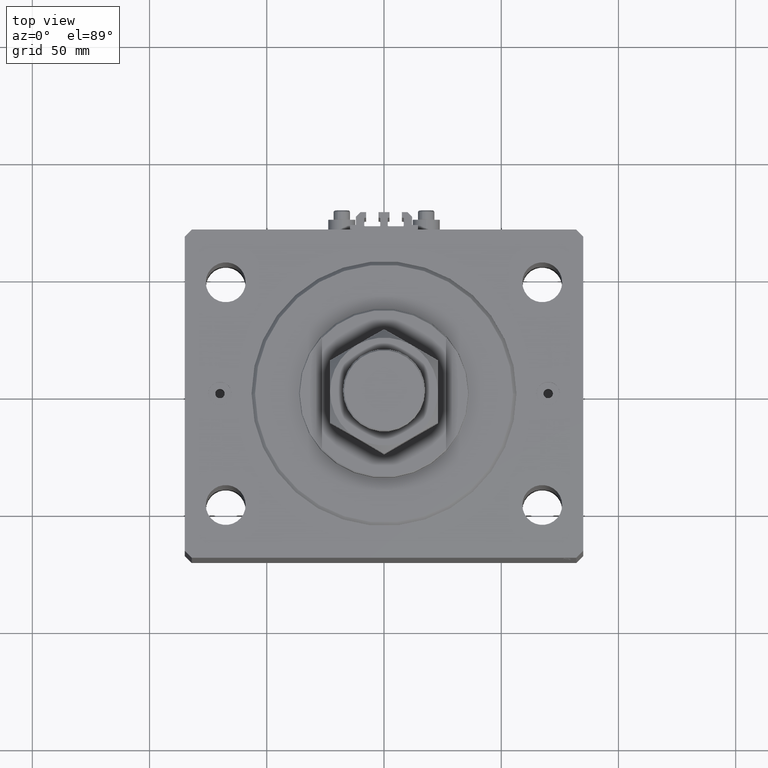
[diagram: clean part render]
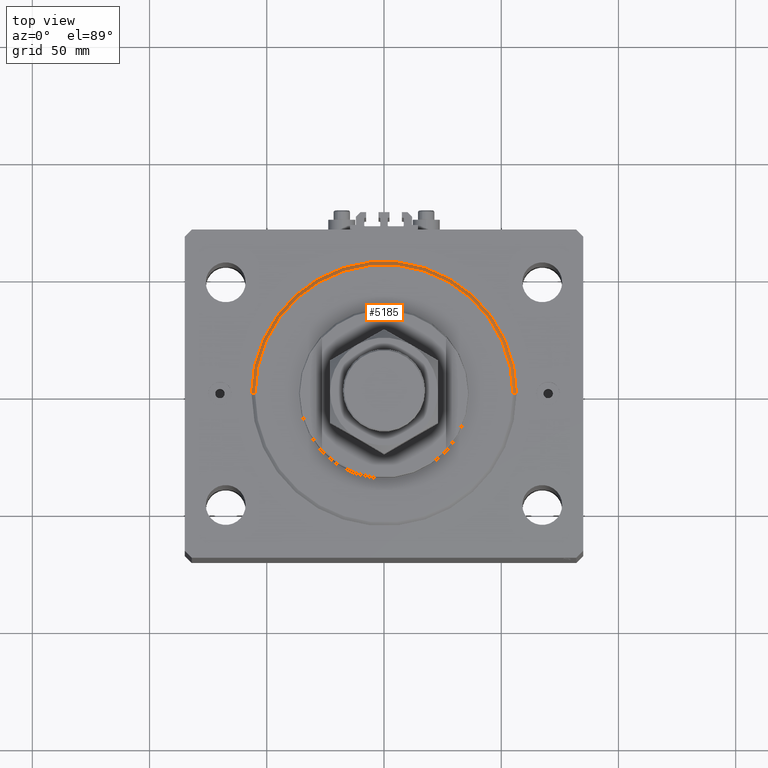
[diagram: same view with one face highlighted and labeled with its STEP entity id]
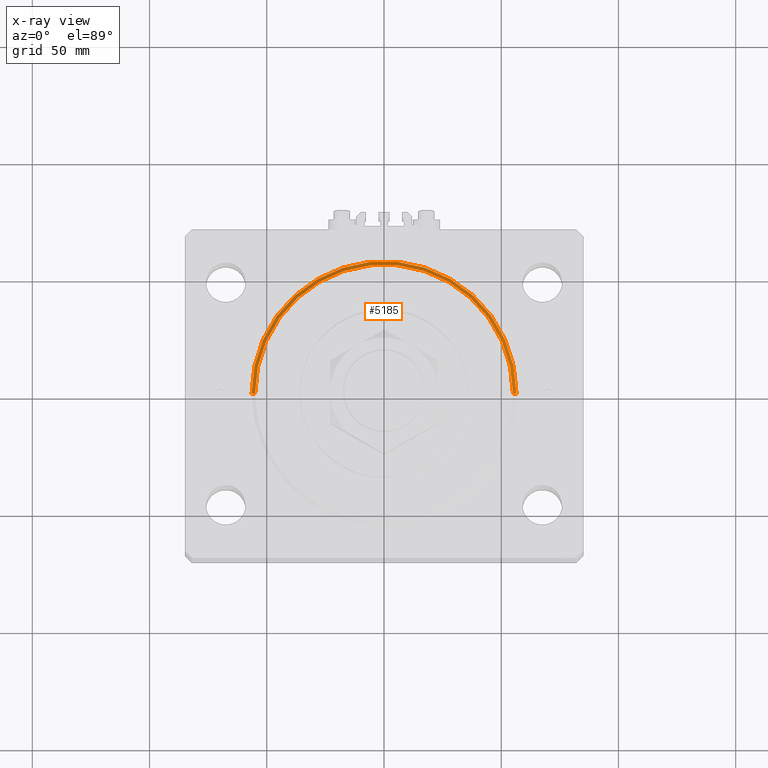
[diagram: x-ray of the same camera — body ghosted, the highlighted face saturated]
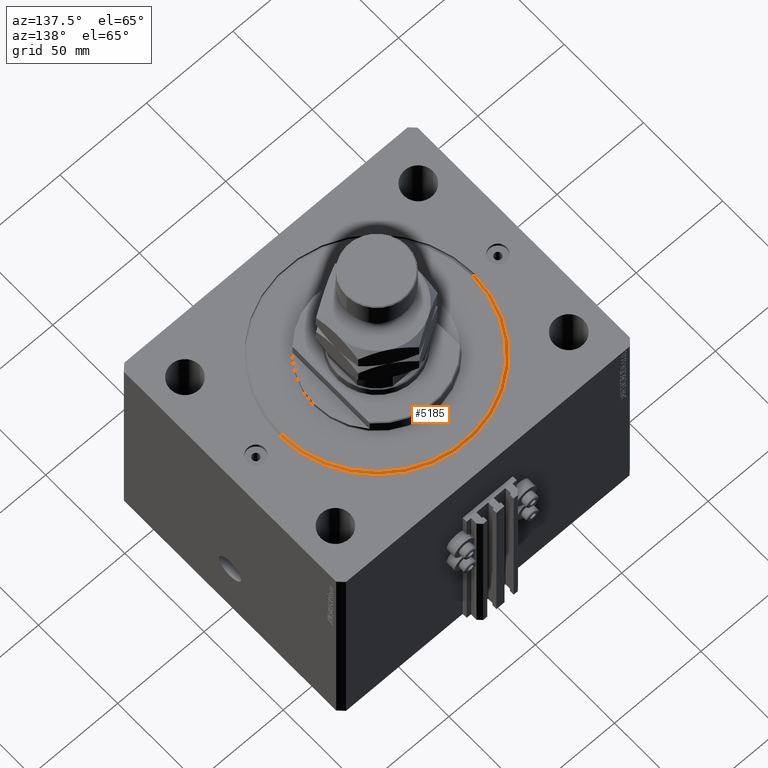
[diagram: same view with one face highlighted and labeled with its STEP entity id]
A machine part, top view. The second image highlights one B-rep face of the part: STEP entity #5185.
The next image is the same camera in x-ray: the body ghosted, the highlighted face saturated — about 0% of this face is hidden behind the body in this view.
A second angle (auxiliary view) of the same face is appended — the face is thin or edge-on in the first view.
In plain terms, the highlighted conical surface has half-angle 45 deg.
Its self-contained STEP definition (entity closure, byte-faithful):
#2716 = CARTESIAN_POINT ( 'NONE',  ( 56.50000000000000711, 0.000000000000000000, 1.499999999999994449 ) ) ;
#5185 = ADVANCED_FACE ( 'NONE', ( #14950 ), #31837, .T. ) ;
#6324 = DIRECTION ( 'NONE',  ( -0.000000000000000000, -0.000000000000000000, -1.000000000000000000 ) ) ;
#6844 = EDGE_CURVE ( 'NONE', #42409, #26504, #18094, .T. ) ;
#7146 = ORIENTED_EDGE ( 'NONE', *, *, #6844, .F. ) ;
#10504 = AXIS2_PLACEMENT_3D ( 'NONE', #34208, #11470, #41906 ) ;
#10642 = DIRECTION ( 'NONE',  ( -0.7071067811865459074, 8.659560562354911904E-17, 0.7071067811865491270 ) ) ;
#11470 = DIRECTION ( 'NONE',  ( -0.000000000000000000, -0.000000000000000000, 1.000000000000000000 ) ) ;
#12000 = VECTOR ( 'NONE', #43334, 1000.000000000000000 ) ;
#12565 = CARTESIAN_POINT ( 'NONE',  ( -56.50000000000000711, 0.000000000000000000, 1.499999999999994449 ) ) ;
#13775 = CARTESIAN_POINT ( 'NONE',  ( 0.000000000000000000, 0.000000000000000000, 0.000000000000000000 ) ) ;
#14950 = FACE_OUTER_BOUND ( 'NONE', #23757, .T. ) ;
#15693 = DIRECTION ( 'NONE',  ( -0.000000000000000000, -0.000000000000000000, 1.000000000000000000 ) ) ;
#18094 = LINE ( 'NONE', #2716, #12000 ) ;
#18097 = CARTESIAN_POINT ( 'NONE',  ( 55.00000000000002132, 0.000000000000000000, 0.000000000000000000 ) ) ;
#18831 = AXIS2_PLACEMENT_3D ( 'NONE', #13775, #6324, #40993 ) ;
#19157 = CARTESIAN_POINT ( 'NONE',  ( 0.000000000000000000, 0.000000000000000000, 1.499999999999994449 ) ) ;
#19484 = EDGE_CURVE ( 'NONE', #31618, #29580, #22297, .T. ) ;
#22297 = LINE ( 'NONE', #29232, #48685 ) ;
#23122 = DIRECTION ( 'NONE',  ( 1.000000000000000000, 0.000000000000000000, 0.000000000000000000 ) ) ;
#23357 = CARTESIAN_POINT ( 'NONE',  ( 56.50000000000000711, 6.919254415182546126E-15, 1.499999999999994449 ) ) ;
#23757 = EDGE_LOOP ( 'NONE', ( #40096, #24349, #34540, #7146 ) ) ;
#24349 = ORIENTED_EDGE ( 'NONE', *, *, #19484, .T. ) ;
#24378 = CIRCLE ( 'NONE', #18831, 55.00000000000002132 ) ;
#26504 = VERTEX_POINT ( 'NONE', #23357 ) ;
#29232 = CARTESIAN_POINT ( 'NONE',  ( -56.50000000000000711, 6.919254415182546126E-15, 1.499999999999994449 ) ) ;
#29580 = VERTEX_POINT ( 'NONE', #12565 ) ;
#30434 = CARTESIAN_POINT ( 'NONE',  ( -55.00000000000002132, 6.827405905246496343E-15, 0.000000000000000000 ) ) ;
#30967 = AXIS2_PLACEMENT_3D ( 'NONE', #19157, #15693, #23122 ) ;
#31618 = VERTEX_POINT ( 'NONE', #30434 ) ;
#31837 = CONICAL_SURFACE ( 'NONE', #10504, 56.50000000000000711, 0.7853981633974460586 ) ;
#34208 = CARTESIAN_POINT ( 'NONE',  ( 0.000000000000000000, 0.000000000000000000, 1.499999999999994449 ) ) ;
#34540 = ORIENTED_EDGE ( 'NONE', *, *, #45354, .F. ) ;
#36479 = EDGE_CURVE ( 'NONE', #31618, #42409, #24378, .T. ) ;
#40096 = ORIENTED_EDGE ( 'NONE', *, *, #36479, .F. ) ;
#40993 = DIRECTION ( 'NONE',  ( 1.000000000000000000, 0.000000000000000000, 0.000000000000000000 ) ) ;
#41906 = DIRECTION ( 'NONE',  ( 1.000000000000000000, 0.000000000000000000, 0.000000000000000000 ) ) ;
#42409 = VERTEX_POINT ( 'NONE', #18097 ) ;
#43334 = DIRECTION ( 'NONE',  ( 0.7071067811865459074, 0.000000000000000000, 0.7071067811865491270 ) ) ;
#45354 = EDGE_CURVE ( 'NONE', #26504, #29580, #47531, .T. ) ;
#47531 = CIRCLE ( 'NONE', #30967, 56.50000000000000711 ) ;
#48685 = VECTOR ( 'NONE', #10642, 1000.000000000000000 ) ;